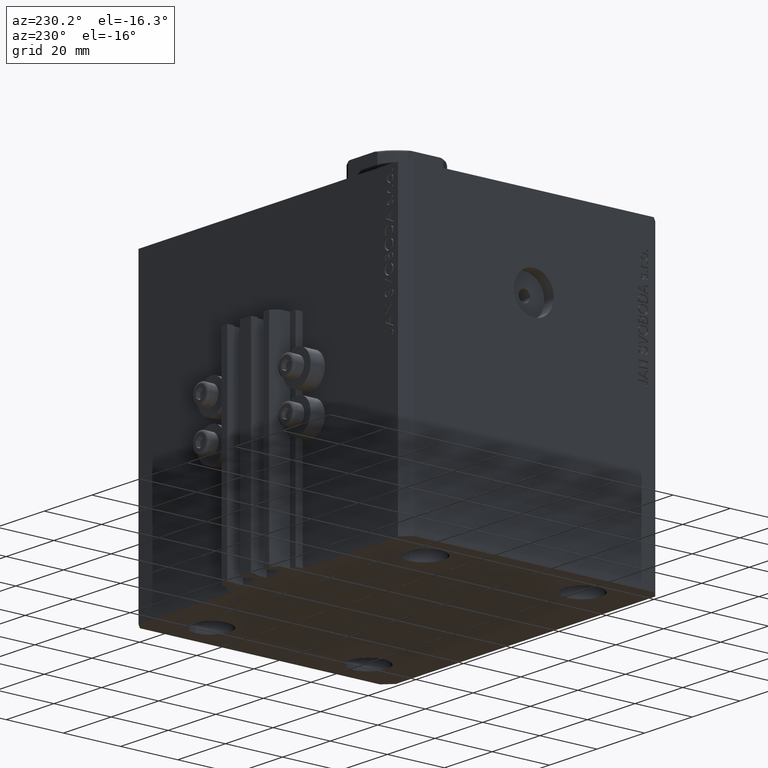
[diagram: clean part render]
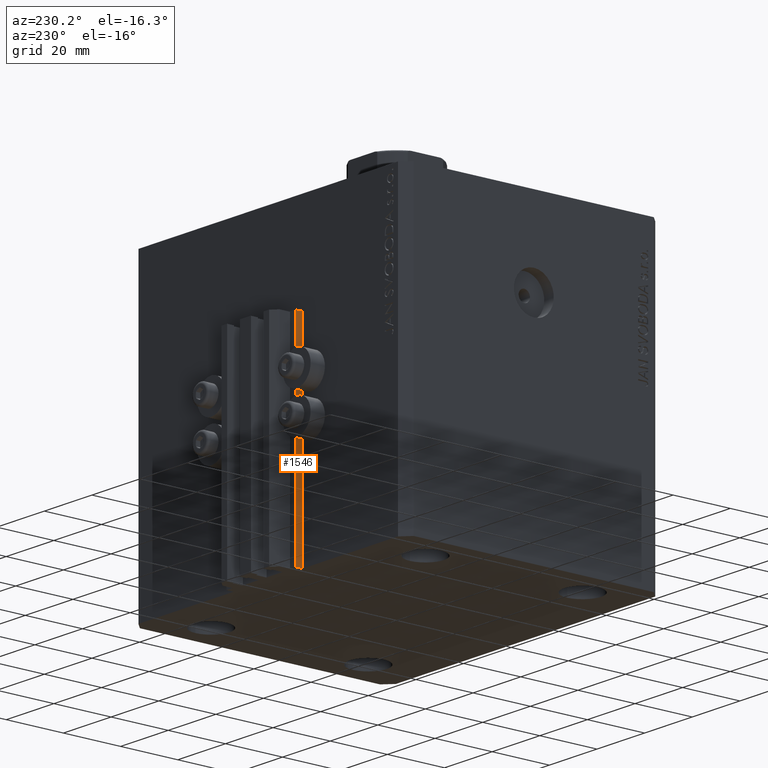
[diagram: same view with one face highlighted and labeled with its STEP entity id]
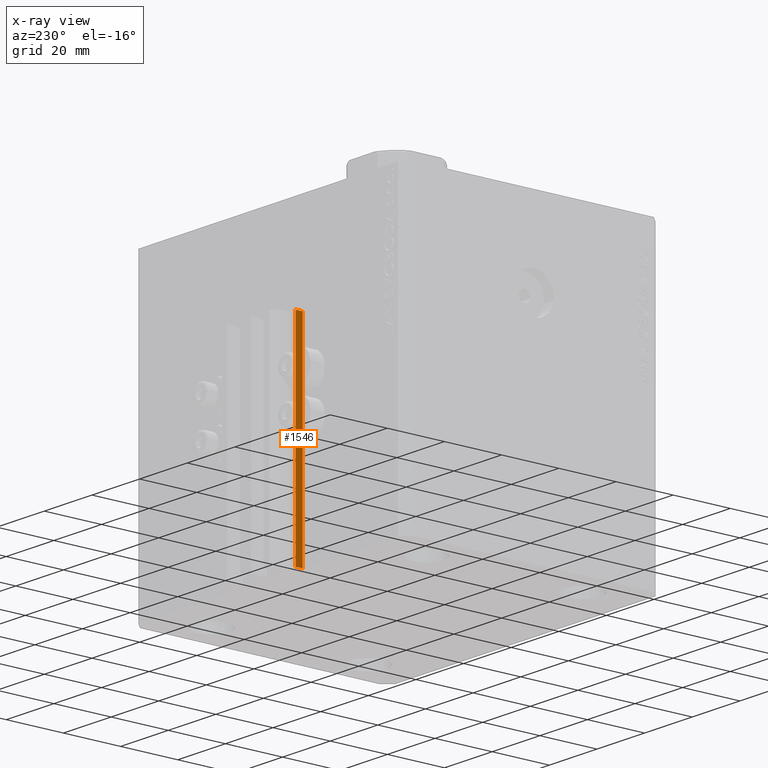
[diagram: x-ray of the same camera — body ghosted, the highlighted face saturated]
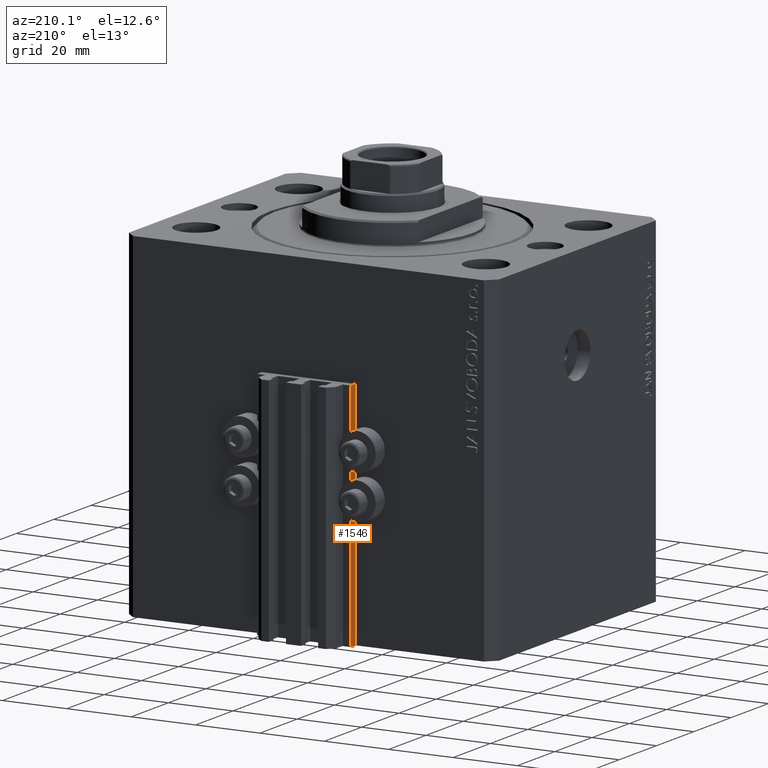
[diagram: same view with one face highlighted and labeled with its STEP entity id]
A machine part, auxiliary view. The second image highlights one B-rep face of the part: STEP entity #1546.
The next image is the same camera in x-ray: the body ghosted, the highlighted face saturated — about 0% of this face is hidden behind the body in this view.
A second angle (auxiliary view) of the same face is appended — the face is thin or edge-on in the first view.
In plain terms, the highlighted planar face has unit normal (-1, 0, 0).
Its self-contained STEP definition (entity closure, byte-faithful):
#1546 = ADVANCED_FACE ( 'NONE', ( #26600 ), #26834, .T. ) ;
#2862 = CARTESIAN_POINT ( 'NONE',  ( -14.50000000000000000, 45.00000000000000000, -105.0000000000000000 ) ) ;
#6854 = EDGE_CURVE ( 'NONE', #7430, #42121, #43219, .T. ) ;
#7430 = VERTEX_POINT ( 'NONE', #42605 ) ;
#7582 = VERTEX_POINT ( 'NONE', #27868 ) ;
#7780 = DIRECTION ( 'NONE',  ( -1.000000000000000000, 0.000000000000000000, 0.000000000000000000 ) ) ;
#8025 = VECTOR ( 'NONE', #37587, 1000.000000000000000 ) ;
#9328 = LINE ( 'NONE', #2862, #32670 ) ;
#9855 = AXIS2_PLACEMENT_3D ( 'NONE', #12284, #7780, #33547 ) ;
#10532 = DIRECTION ( 'NONE',  ( 0.000000000000000000, -1.000000000000000000, 0.000000000000000000 ) ) ;
#11210 = ORIENTED_EDGE ( 'NONE', *, *, #29311, .T. ) ;
#12179 = VECTOR ( 'NONE', #10532, 1000.000000000000000 ) ;
#12284 = CARTESIAN_POINT ( 'NONE',  ( -14.50000000000000000, 47.49999999999998579, -105.0000000000000000 ) ) ;
#13587 = LINE ( 'NONE', #17173, #39960 ) ;
#14189 = CARTESIAN_POINT ( 'NONE',  ( -14.50000000000000000, 45.00000000000000000, -105.0000000000000000 ) ) ;
#15695 = VERTEX_POINT ( 'NONE', #14189 ) ;
#16096 = CARTESIAN_POINT ( 'NONE',  ( -14.50000000000000000, 47.49999999999998579, -105.0000000000000000 ) ) ;
#17173 = CARTESIAN_POINT ( 'NONE',  ( -14.50000000000000000, 47.49999999999998579, -105.0000000000000000 ) ) ;
#23503 = CARTESIAN_POINT ( 'NONE',  ( -14.50000000000000000, 45.00000000000000000, -33.00000000000000000 ) ) ;
#26600 = FACE_OUTER_BOUND ( 'NONE', #34260, .T. ) ;
#26834 = PLANE ( 'NONE',  #9855 ) ;
#27868 = CARTESIAN_POINT ( 'NONE',  ( -14.50000000000000000, 47.49999999999998579, -105.0000000000000000 ) ) ;
#29311 = EDGE_CURVE ( 'NONE', #7582, #15695, #13587, .T. ) ;
#32670 = VECTOR ( 'NONE', #35101, 1000.000000000000000 ) ;
#33213 = EDGE_CURVE ( 'NONE', #7582, #7430, #41645, .T. ) ;
#33547 = DIRECTION ( 'NONE',  ( 0.000000000000000000, 0.000000000000000000, 1.000000000000000000 ) ) ;
#34186 = ORIENTED_EDGE ( 'NONE', *, *, #45966, .T. ) ;
#34260 = EDGE_LOOP ( 'NONE', ( #45967, #43310, #11210, #34186 ) ) ;
#35101 = DIRECTION ( 'NONE',  ( 0.000000000000000000, 0.000000000000000000, 1.000000000000000000 ) ) ;
#37587 = DIRECTION ( 'NONE',  ( 0.000000000000000000, 0.000000000000000000, 1.000000000000000000 ) ) ;
#39960 = VECTOR ( 'NONE', #42705, 1000.000000000000000 ) ;
#41645 = LINE ( 'NONE', #16096, #8025 ) ;
#42121 = VERTEX_POINT ( 'NONE', #23503 ) ;
#42605 = CARTESIAN_POINT ( 'NONE',  ( -14.50000000000000000, 47.49999999999998579, -33.00000000000000000 ) ) ;
#42705 = DIRECTION ( 'NONE',  ( 0.000000000000000000, -1.000000000000000000, 0.000000000000000000 ) ) ;
#43219 = LINE ( 'NONE', #46336, #12179 ) ;
#43310 = ORIENTED_EDGE ( 'NONE', *, *, #33213, .F. ) ;
#45966 = EDGE_CURVE ( 'NONE', #15695, #42121, #9328, .T. ) ;
#45967 = ORIENTED_EDGE ( 'NONE', *, *, #6854, .F. ) ;
#46336 = CARTESIAN_POINT ( 'NONE',  ( -14.50000000000000000, 47.49999999999998579, -33.00000000000000000 ) ) ;